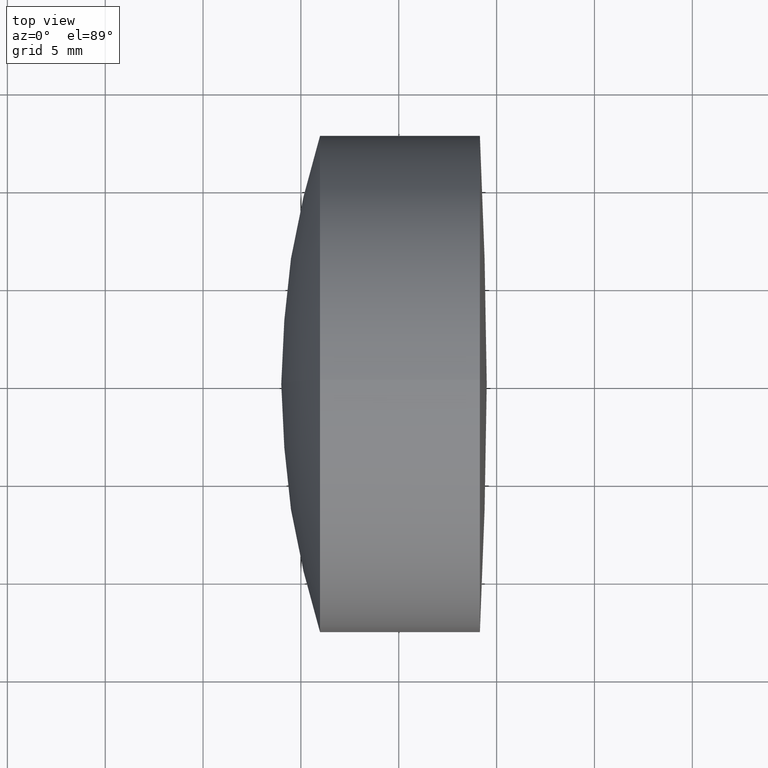
[diagram: clean part render]
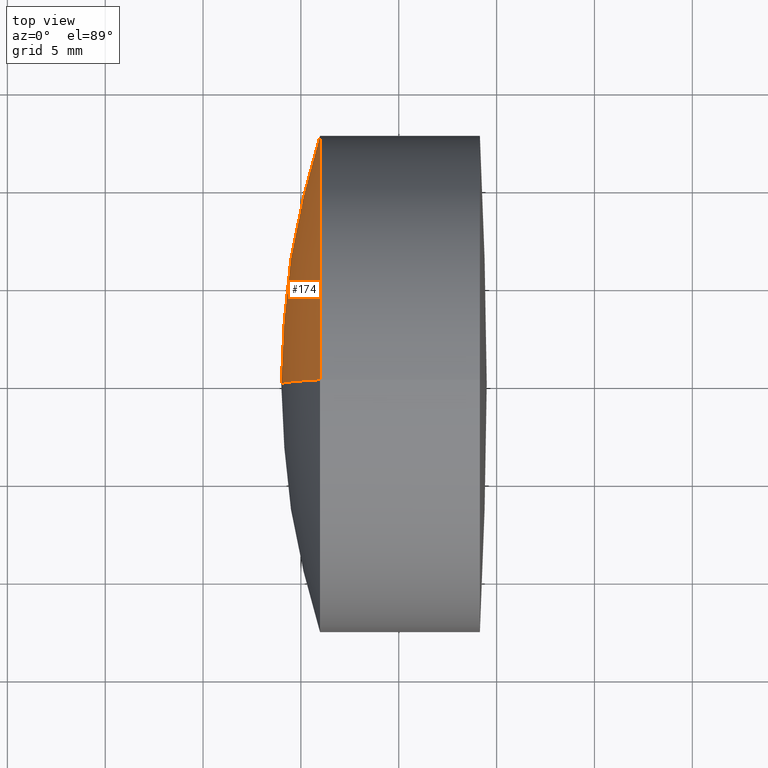
[diagram: same view with one face highlighted and labeled with its STEP entity id]
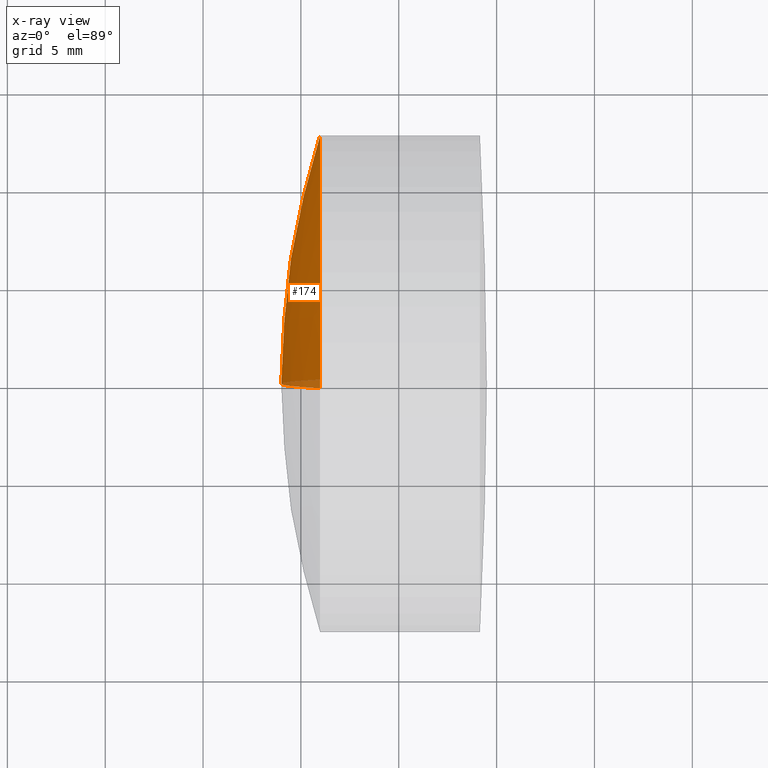
[diagram: x-ray of the same camera — body ghosted, the highlighted face saturated]
A machine part, top view. The second image highlights one B-rep face of the part: STEP entity #174.
The next image is the same camera in x-ray: the body ghosted, the highlighted face saturated — about 3% of this face is hidden behind the body in this view.
In plain terms, the highlighted spherical surface has radius 41.7 mm.
Its self-contained STEP definition (entity closure, byte-faithful):
#2 = ORIENTED_EDGE ( 'NONE', *, *, #186, .F. ) ;
#20 = CARTESIAN_POINT ( 'NONE',  ( 270.6958458084194500, 0.0000000000000000000, -3.673513936803738400E-015 ) ) ;
#26 = EDGE_CURVE ( 'NONE', #102, #137, #97, .T. ) ;
#38 = DIRECTION ( 'NONE',  ( 0.0000000000000000000, 0.0000000000000000000, -1.000000000000000000 ) ) ;
#40 = DIRECTION ( 'NONE',  ( 0.0000000000000000000, 1.000000000000000000, 0.0000000000000000000 ) ) ;
#47 = SPHERICAL_SURFACE ( 'NONE', #260, 41.69999999999998900 ) ;
#49 = DIRECTION ( 'NONE',  ( 0.0000000000000000000, 0.0000000000000000000, 1.000000000000000000 ) ) ;
#63 = FACE_OUTER_BOUND ( 'NONE', #290, .T. ) ;
#83 = CIRCLE ( 'NONE', #116, 41.69999999999998900 ) ;
#85 = AXIS2_PLACEMENT_3D ( 'NONE', #256, #112, #282 ) ;
#88 = EDGE_CURVE ( 'NONE', #137, #310, #83, .T. ) ;
#96 = DIRECTION ( 'NONE',  ( -0.0000000000000000000, 1.000000000000000000, 1.224646799147353200E-016 ) ) ;
#97 = CIRCLE ( 'NONE', #85, 12.69999999999999600 ) ;
#102 = VERTEX_POINT ( 'NONE', #241 ) ;
#112 = DIRECTION ( 'NONE',  ( -1.000000000000000000, -0.0000000000000000000, -0.0000000000000000000 ) ) ;
#116 = AXIS2_PLACEMENT_3D ( 'NONE', #274, #96, #213 ) ;
#137 = VERTEX_POINT ( 'NONE', #138 ) ;
#138 = CARTESIAN_POINT ( 'NONE',  ( 230.9768327290389300, 1.555301434917137800E-015, -12.69999999999999800 ) ) ;
#165 = ORIENTED_EDGE ( 'NONE', *, *, #26, .T. ) ;
#174 = ADVANCED_FACE ( 'NONE', ( #63 ), #47, .T. ) ;
#186 = EDGE_CURVE ( 'NONE', #102, #310, #196, .T. ) ;
#196 = CIRCLE ( 'NONE', #268, 41.69999999999998900 ) ;
#213 = DIRECTION ( 'NONE',  ( 0.0000000000000000000, -1.224646799147353000E-016, 1.000000000000000000 ) ) ;
#216 = CARTESIAN_POINT ( 'NONE',  ( 228.9958458084194300, 0.0000000000000000000, -1.120125360581508200E-015 ) ) ;
#241 = CARTESIAN_POINT ( 'NONE',  ( 230.9768327290389300, 0.0000000000000000000, 12.69999999999999400 ) ) ;
#256 = CARTESIAN_POINT ( 'NONE',  ( 230.9768327290389300, 0.0000000000000000000, 0.0000000000000000000 ) ) ;
#260 = AXIS2_PLACEMENT_3D ( 'NONE', #345, #40, #49 ) ;
#266 = ORIENTED_EDGE ( 'NONE', *, *, #88, .T. ) ;
#268 = AXIS2_PLACEMENT_3D ( 'NONE', #20, #338, #38 ) ;
#274 = CARTESIAN_POINT ( 'NONE',  ( 270.6958458084194500, 0.0000000000000000000, -3.673513936803738400E-015 ) ) ;
#282 = DIRECTION ( 'NONE',  ( 0.0000000000000000000, 0.0000000000000000000, 1.000000000000000000 ) ) ;
#290 = EDGE_LOOP ( 'NONE', ( #165, #266, #2 ) ) ;
#310 = VERTEX_POINT ( 'NONE', #216 ) ;
#338 = DIRECTION ( 'NONE',  ( 0.0000000000000000000, -1.000000000000000000, 0.0000000000000000000 ) ) ;
#345 = CARTESIAN_POINT ( 'NONE',  ( 270.6958458084194500, 0.0000000000000000000, -3.673513936803738400E-015 ) ) ;